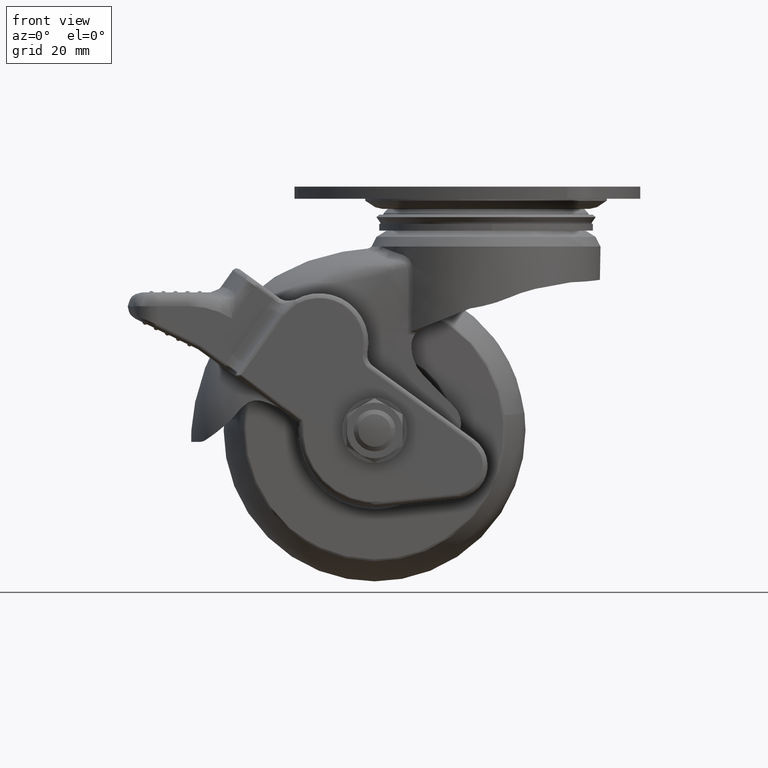
[diagram: clean part render]
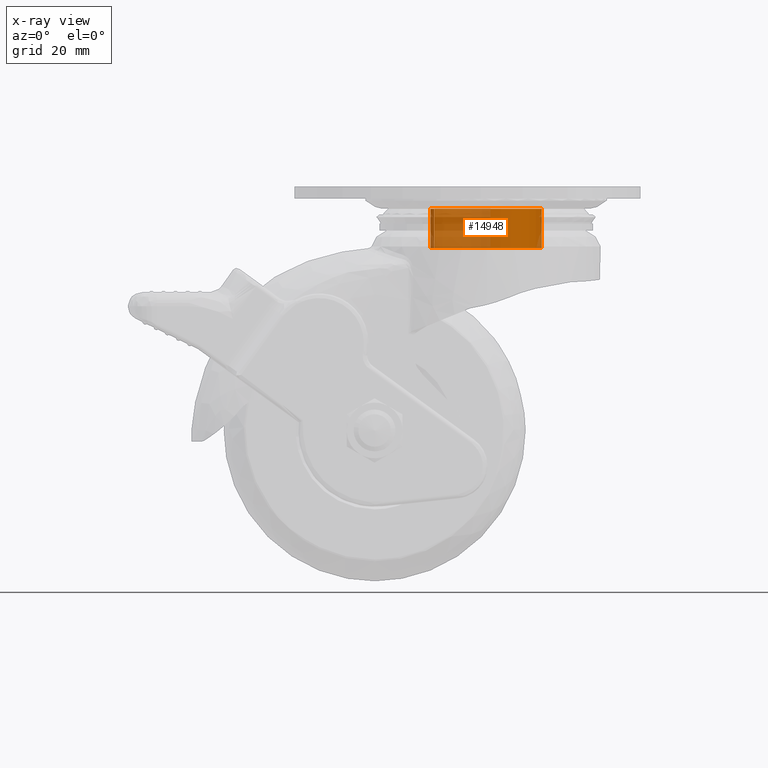
[diagram: x-ray — body ghosted, one internal face saturated and labeled with its STEP entity id]
A machine part, front view, then the same camera in x-ray: the body is ghosted and one INTERNAL B-rep face — a face not visible from any outside direction — is saturated and labeled: STEP entity #14948.
In plain terms, the highlighted face is a freeform B-spline surface patch.
Its self-contained STEP definition (entity closure, byte-faithful):
#14747=CARTESIAN_POINT('',(0.941509148790060,-11.963008004793110,-13.260379159229100));
#14748=VERTEX_POINT('',#14747);
#14749=CARTESIAN_POINT('',(-11.158375392530271,-4.414822601117043,-13.260379159228179));
#14750=VERTEX_POINT('',#14749);
#14766=CARTESIAN_POINT('',(-11.158375364186220,-4.414822672756183,-4.798019399278152));
#14767=VERTEX_POINT('',#14766);
#14768=CARTESIAN_POINT('',(-11.158375392530271,-4.414822601117043,-13.260379159228179));
#14769=CARTESIAN_POINT('',(-11.158375364186220,-4.414822672756183,-4.798019399278152));
#14770=QUASI_UNIFORM_CURVE('',1,(#14768,#14769),.UNSPECIFIED.,.F.,.U.);
#14771=EDGE_CURVE('',#14750,#14767,#14770,.T.);
#14773=CARTESIAN_POINT('',(0.941509148789619,-11.963008004793171,-4.798019399278150));
#14774=VERTEX_POINT('',#14773);
#14790=CARTESIAN_POINT('',(0.941509148790060,-11.963008004793110,-13.260379159229100));
#14791=CARTESIAN_POINT('',(0.941509148789619,-11.963008004793171,-4.798019399278150));
#14792=QUASI_UNIFORM_CURVE('',1,(#14790,#14791),.UNSPECIFIED.,.F.,.U.);
#14793=EDGE_CURVE('',#14748,#14774,#14792,.T.);
#14798=CARTESIAN_POINT('',(0.941509148734146,-11.963008004797530,-13.471938153489010));
#14799=CARTESIAN_POINT('',(12.904517153531678,-11.021498856063385,-13.471938153489011));
#14800=CARTESIAN_POINT('',(11.963008004797530,0.941509148734146,-13.471938153489010));
#14801=CARTESIAN_POINT('',(11.021498856063385,12.904517153531678,-13.471938153489011));
#14802=CARTESIAN_POINT('',(-0.941509148734146,11.963008004797530,-13.471938153489010));
#14803=CARTESIAN_POINT('',(-12.904517153531678,11.021498856063385,-13.471938153489011));
#14804=CARTESIAN_POINT('',(-11.963008004797530,-0.941509148734146,-13.471938153489010));
#14805=CARTESIAN_POINT('',(-11.821573460274356,-2.738605428213267,-13.471938153489010));
#14806=CARTESIAN_POINT('',(-11.158373037306719,-4.414828553897236,-13.471938153489006));
#14807=CARTESIAN_POINT('',(0.941509148734146,-11.963008004797530,-4.581171430422879));
#14808=CARTESIAN_POINT('',(12.904517153531678,-11.021498856063385,-4.581171430422879));
#14809=CARTESIAN_POINT('',(11.963008004797530,0.941509148734146,-4.581171430422879));
#14810=CARTESIAN_POINT('',(11.021498856063385,12.904517153531678,-4.581171430422879));
#14811=CARTESIAN_POINT('',(-0.941509148734146,11.963008004797530,-4.581171430422879));
#14812=CARTESIAN_POINT('',(-12.904517153531678,11.021498856063385,-4.581171430422879));
#14813=CARTESIAN_POINT('',(-11.963008004797530,-0.941509148734146,-4.581171430422879));
#14814=CARTESIAN_POINT('',(-11.821573460274356,-2.738605428213267,-4.581171430422878));
#14815=CARTESIAN_POINT('',(-11.158373037306719,-4.414828553897236,-4.581171430422878));
#14823=(BOUNDED_SURFACE()B_SPLINE_SURFACE(2,1,((#14798,#14807),(#14799,#14808),(#14800,#14809),(#14801,#14810),(#14802,#14811),(#14803,#14812),(#14804,#14813),(#14805,#14814),(#14806,#14815)),.UNSPECIFIED.,.F.,.F.,.U.)B_SPLINE_SURFACE_WITH_KNOTS((3,2,2,2,3),(2,2),(0.0,19.882250993908560,39.764501987817120,59.646752981725683,63.623203180507403),(0.0,8.890766723066133),.UNSPECIFIED.)GEOMETRIC_REPRESENTATION_ITEM()RATIONAL_B_SPLINE_SURFACE(((1.0,1.0),(0.707106781186548,0.707106781186548),(1.0,1.0),(0.707106781186548,0.707106781186548),(1.0,1.0),(0.707106781186548,0.707106781186548),(1.0,1.0),(0.941421356237310,0.941421356237310),(0.906274169979695,0.906274169979695)))REPRESENTATION_ITEM('')SURFACE());
#14824=CARTESIAN_POINT('',(-12.0,0.0,-13.260379159228300));
#14825=VERTEX_POINT('',#14824);
#14826=CARTESIAN_POINT('',(-11.158375392530271,-4.414822601117043,-13.260379159228181));
#14827=CARTESIAN_POINT('',(-11.999999999999995,-2.287633321225823,-13.260379159228302));
#14828=CARTESIAN_POINT('',(-12.0,0.0,-13.260379159228300));
#14836=(BOUNDED_CURVE()B_SPLINE_CURVE(2,(#14826,#14827,#14828),.UNSPECIFIED.,.F.,.U.)B_SPLINE_CURVE_WITH_KNOTS((3,3),(0.437532633891850,0.500000000000000),.UNSPECIFIED.)CURVE()GEOMETRIC_REPRESENTATION_ITEM()RATIONAL_B_SPLINE_CURVE((0.890203285908989,0.926814928279143,1.0))REPRESENTATION_ITEM(''));
#14837=EDGE_CURVE('',#14750,#14825,#14836,.T.);
#14838=ORIENTED_EDGE('',*,*,#14837,.T.);
#14839=CARTESIAN_POINT('',(0.836799019030639,11.970788086076430,-13.260379159462190));
#14840=VERTEX_POINT('',#14839);
#14841=CARTESIAN_POINT('',(-12.0,0.0,-13.260379159228300));
#14842=CARTESIAN_POINT('',(-12.0,12.0,-13.260379159228300));
#14843=CARTESIAN_POINT('',(0.0,12.0,-13.260379159228300));
#14844=CARTESIAN_POINT('',(0.418909390622306,11.999999999999998,-13.260379159228302));
#14845=CARTESIAN_POINT('',(0.836799019030639,11.970788086076425,-13.260379159462193));
#14853=(BOUNDED_CURVE()B_SPLINE_CURVE(2,(#14841,#14842,#14843,#14844,#14845),.UNSPECIFIED.,.F.,.U.)B_SPLINE_CURVE_WITH_KNOTS((3,2,3),(0.500000000000000,0.750000000000000,0.762166313468466),.UNSPECIFIED.)CURVE()GEOMETRIC_REPRESENTATION_ITEM()RATIONAL_B_SPLINE_CURVE((1.0,0.707106781186548,1.0,0.985746277148510,0.972879876379451))REPRESENTATION_ITEM(''));
#14854=EDGE_CURVE('',#14825,#14840,#14853,.T.);
#14855=ORIENTED_EDGE('',*,*,#14854,.T.);
#14856=CARTESIAN_POINT('',(12.0,0.0,-13.260379159228300));
#14857=VERTEX_POINT('',#14856);
#14858=CARTESIAN_POINT('',(0.836799019030639,11.970788086076427,-13.260379159462186));
#14859=CARTESIAN_POINT('',(12.0,11.190442166964537,-13.260379159228302));
#14860=CARTESIAN_POINT('',(12.0,0.0,-13.260379159228300));
#14868=(BOUNDED_CURVE()B_SPLINE_CURVE(2,(#14858,#14859,#14860),.UNSPECIFIED.,.F.,.U.)B_SPLINE_CURVE_WITH_KNOTS((3,3),(0.762166313468467,1.0),.UNSPECIFIED.)CURVE()GEOMETRIC_REPRESENTATION_ITEM()RATIONAL_B_SPLINE_CURVE((0.972879876379450,0.721360504038038,1.0))REPRESENTATION_ITEM(''));
#14869=EDGE_CURVE('',#14840,#14857,#14868,.T.);
#14870=ORIENTED_EDGE('',*,*,#14869,.T.);
#14871=CARTESIAN_POINT('',(11.999052530445599,-0.150792478615352,-13.260379159483870));
#14872=VERTEX_POINT('',#14871);
#14873=CARTESIAN_POINT('',(12.0,0.0,-13.260379159228300));
#14874=CARTESIAN_POINT('',(12.000000000000002,-0.075399215917799,-13.260379159228297));
#14875=CARTESIAN_POINT('',(11.999052530445599,-0.150792478615352,-13.260379159483872));
#14883=(BOUNDED_CURVE()B_SPLINE_CURVE(2,(#14873,#14874,#14875),.UNSPECIFIED.,.F.,.U.)B_SPLINE_CURVE_WITH_KNOTS((3,3),(0.0,0.002215704078715),.UNSPECIFIED.)CURVE()GEOMETRIC_REPRESENTATION_ITEM()RATIONAL_B_SPLINE_CURVE((1.0,0.997404141201788,0.994854295642992))REPRESENTATION_ITEM(''));
#14884=EDGE_CURVE('',#14857,#14872,#14883,.T.);
#14885=ORIENTED_EDGE('',*,*,#14884,.T.);
#14886=CARTESIAN_POINT('',(11.999052530445599,-0.150792478615352,-13.260379159483872));
#14887=CARTESIAN_POINT('',(11.861408330645572,-11.103593300724498,-13.260379159247634));
#14888=CARTESIAN_POINT('',(0.941509148790060,-11.963008004793108,-13.260379159229098));
#14896=(BOUNDED_CURVE()B_SPLINE_CURVE(2,(#14886,#14887,#14888),.UNSPECIFIED.,.F.,.U.)B_SPLINE_CURVE_WITH_KNOTS((3,3),(0.002215704078715,0.236331300631164),.UNSPECIFIED.)CURVE()GEOMETRIC_REPRESENTATION_ITEM()RATIONAL_B_SPLINE_CURVE((0.994854295642992,0.725432661297152,0.969723356168471))REPRESENTATION_ITEM(''));
#14897=EDGE_CURVE('',#14872,#14748,#14896,.T.);
#14898=ORIENTED_EDGE('',*,*,#14897,.T.);
#14899=ORIENTED_EDGE('',*,*,#14793,.T.);
#14900=CARTESIAN_POINT('',(12.0,0.0,-4.798019399278150));
#14901=VERTEX_POINT('',#14900);
#14902=CARTESIAN_POINT('',(12.0,0.0,-4.798019399278150));
#14903=CARTESIAN_POINT('',(12.0,-11.092685899795239,-4.798019399278150));
#14904=CARTESIAN_POINT('',(0.941509148789619,-11.963008004793176,-4.798019399278150));
#14912=(BOUNDED_CURVE()B_SPLINE_CURVE(2,(#14902,#14903,#14904),.UNSPECIFIED.,.F.,.U.)B_SPLINE_CURVE_WITH_KNOTS((3,3),(0.500000000000000,0.736331300631176),.UNSPECIFIED.)CURVE()GEOMETRIC_REPRESENTATION_ITEM()RATIONAL_B_SPLINE_CURVE((1.0,0.723120658607060,0.969723356168496))REPRESENTATION_ITEM(''));
#14913=EDGE_CURVE('',#14901,#14774,#14912,.T.);
#14914=ORIENTED_EDGE('',*,*,#14913,.F.);
#14915=CARTESIAN_POINT('',(-12.0,0.0,-4.798019399278150));
#14916=VERTEX_POINT('',#14915);
#14917=CARTESIAN_POINT('',(-12.0,0.0,-4.798019399278150));
#14918=CARTESIAN_POINT('',(-12.0,12.0,-4.798019399278151));
#14919=CARTESIAN_POINT('',(0.0,12.0,-4.798019399278150));
#14920=CARTESIAN_POINT('',(12.0,12.0,-4.798019399278151));
#14921=CARTESIAN_POINT('',(12.0,0.0,-4.798019399278150));
#14929=(BOUNDED_CURVE()B_SPLINE_CURVE(2,(#14917,#14918,#14919,#14920,#14921),.UNSPECIFIED.,.F.,.U.)B_SPLINE_CURVE_WITH_KNOTS((3,2,3),(0.0,0.250000000000000,0.500000000000000),.UNSPECIFIED.)CURVE()GEOMETRIC_REPRESENTATION_ITEM()RATIONAL_B_SPLINE_CURVE((1.0,0.707106781186548,1.0,0.707106781186548,1.0))REPRESENTATION_ITEM(''));
#14930=EDGE_CURVE('',#14916,#14901,#14929,.T.);
#14931=ORIENTED_EDGE('',*,*,#14930,.F.);
#14932=CARTESIAN_POINT('',(-11.158375364186217,-4.414822672756182,-4.798019399278152));
#14933=CARTESIAN_POINT('',(-11.999999999999996,-2.287633361147037,-4.798019399278149));
#14934=CARTESIAN_POINT('',(-12.0,0.0,-4.798019399278150));
#14942=(BOUNDED_CURVE()B_SPLINE_CURVE(2,(#14932,#14933,#14934),.UNSPECIFIED.,.F.,.U.)B_SPLINE_CURVE_WITH_KNOTS((3,3),(0.937532632881520,1.0),.UNSPECIFIED.)CURVE()GEOMETRIC_REPRESENTATION_ITEM()RATIONAL_B_SPLINE_CURVE((0.890203284724695,0.926814927095467,1.0))REPRESENTATION_ITEM(''));
#14943=EDGE_CURVE('',#14767,#14916,#14942,.T.);
#14944=ORIENTED_EDGE('',*,*,#14943,.F.);
#14945=ORIENTED_EDGE('',*,*,#14771,.F.);
#14946=EDGE_LOOP('',(#14838,#14855,#14870,#14885,#14898,#14899,#14914,#14931,#14944,#14945));
#14947=FACE_OUTER_BOUND('',#14946,.T.);
#14948=ADVANCED_FACE('',(#14947),#14823,.F.);